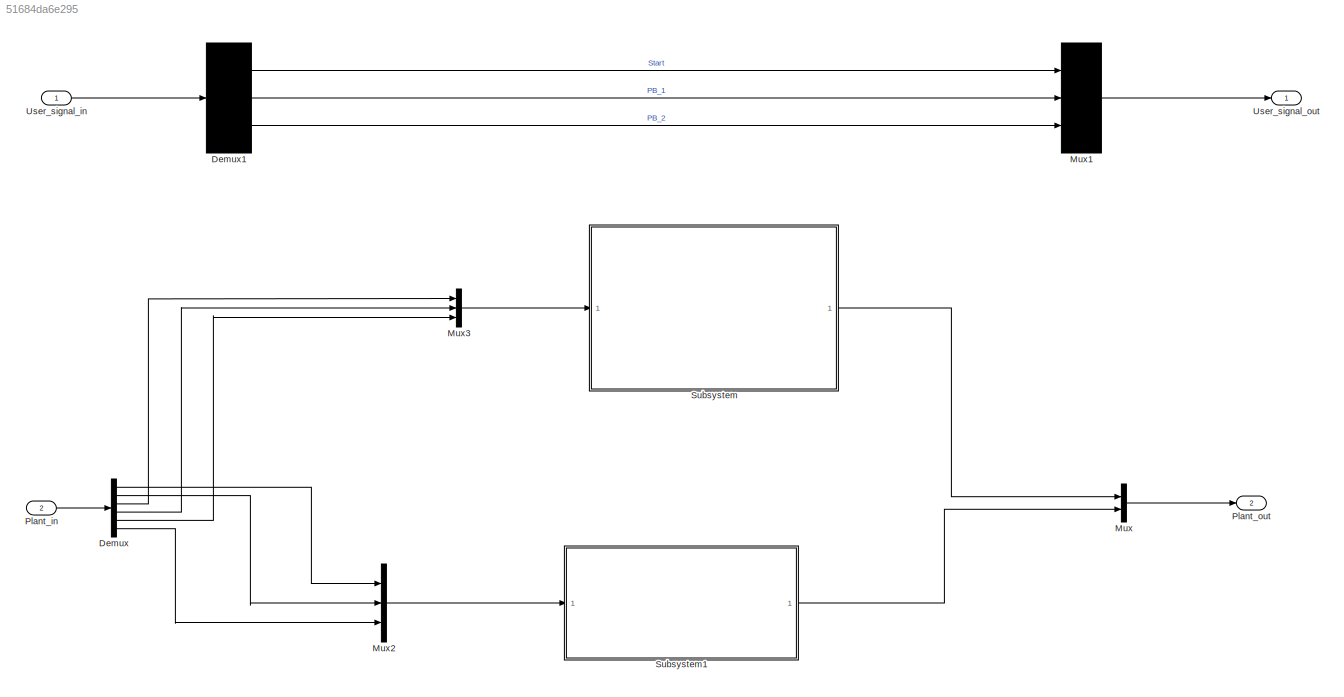
MODEL slx_51684da6e295
KIND model
CONFIG AbsTol = auto
CONFIG EnableMultiTasking = off
CONFIG FixedStep = 0.25
CONFIG MaxStep = auto
CONFIG MinStep = auto
CONFIG RelTol = 1e-3
CONFIG SampleTimeConstraint = Unconstrained
CONFIG Solver = FixedStepDiscrete
CONFIG SolverName = FixedStepDiscrete
CONFIG StartTime = 0.0
CONFIG StopTime = 40
BLOCK [Demux] Demux
  DisplayOption = bar
  Outputs = 6
  Ports = [1, 6]
BLOCK [Demux] Demux1
  Outputs = 3
  Ports = [1, 3]
BLOCK [Mux] Mux
  DisplayOption = bar
  Inputs = 2
  Ports = [2, 1]
BLOCK [Mux] Mux1
  Inputs = 3
  Ports = [3, 1]
BLOCK [Mux] Mux2
  DisplayOption = bar
  Inputs = 3
  Ports = [3, 1]
BLOCK [Mux] Mux3
  DisplayOption = bar
  Inputs = 3
  Ports = [3, 1]
BLOCK [Inport] Plant_in
  IconDisplay = Port number
  Port = 2
BLOCK [Outport] Plant_out
  IconDisplay = Port number
  Port = 2
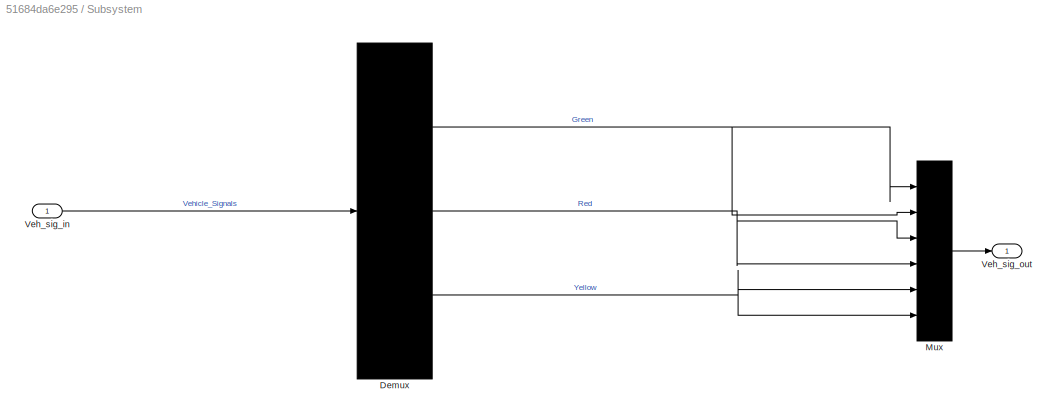
BLOCK [SubSystem] Subsystem
  Ports = [1, 1]
  RequestExecContextInheritance = off
BLOCK [Demux] Subsystem/Demux
  Outputs = 3
  Ports = [1, 3]
BLOCK [Mux] Subsystem/Mux
  Inputs = 6
  Ports = [6, 1]
BLOCK [Inport] Subsystem/Veh_sig_in
  IconDisplay = Port number
BLOCK [Outport] Subsystem/Veh_sig_out
  IconDisplay = Port number
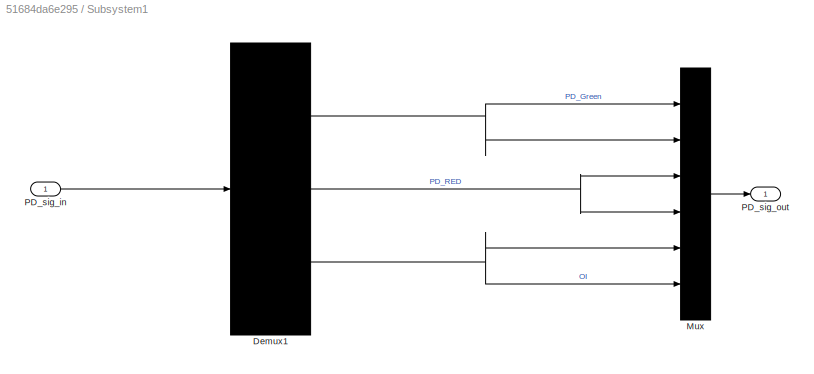
BLOCK [SubSystem] Subsystem1
  Ports = [1, 1]
  RequestExecContextInheritance = off
BLOCK [Demux] Subsystem1/Demux1
  Outputs = 3
  Ports = [1, 3]
BLOCK [Mux] Subsystem1/Mux
  Inputs = 6
  Ports = [6, 1]
BLOCK [Inport] Subsystem1/PD_sig_in
  IconDisplay = Port number
BLOCK [Outport] Subsystem1/PD_sig_out
  IconDisplay = Port number
BLOCK [Inport] User_signal_in
  IconDisplay = Port number
BLOCK [Outport] User_signal_out
  IconDisplay = Port number
LINE Demux1:1 -> Mux1:1
LINE Demux1:2 -> Mux1:2
LINE Demux1:3 -> Mux1:3
LINE Demux:1 -> Mux2:1
LINE Demux:2 -> Mux2:2
LINE Demux:3 -> Mux3:1
LINE Demux:4 -> Mux3:2
LINE Demux:5 -> Mux3:3
LINE Demux:6 -> Mux2:3
LINE Mux1:1 -> User_signal_out:1
LINE Mux2:1 -> Subsystem1:1
LINE Mux3:1 -> Subsystem:1
LINE Mux:1 -> Plant_out:1
LINE Plant_in:1 -> Demux:1
NET Subsystem/Demux:1 -> Subsystem/Mux:1, Subsystem/Mux:2
NET Subsystem/Demux:2 -> Subsystem/Mux:3, Subsystem/Mux:4
NET Subsystem/Demux:3 -> Subsystem/Mux:5, Subsystem/Mux:6
LINE Subsystem/Mux:1 -> Subsystem/Veh_sig_out:1
LINE Subsystem/Veh_sig_in:1 -> Subsystem/Demux:1
NET Subsystem1/Demux1:1 -> Subsystem1/Mux:1, Subsystem1/Mux:2
NET Subsystem1/Demux1:2 -> Subsystem1/Mux:3, Subsystem1/Mux:4
NET Subsystem1/Demux1:3 -> Subsystem1/Mux:5, Subsystem1/Mux:6
LINE Subsystem1/Mux:1 -> Subsystem1/PD_sig_out:1
LINE Subsystem1/PD_sig_in:1 -> Subsystem1/Demux1:1
LINE Subsystem1:1 -> Mux:2
LINE Subsystem:1 -> Mux:1
LINE User_signal_in:1 -> Demux1:1
note: NET lines group one-source signal fan-out (src -> all destinations, sorted); 1:1 wires keep LINE
